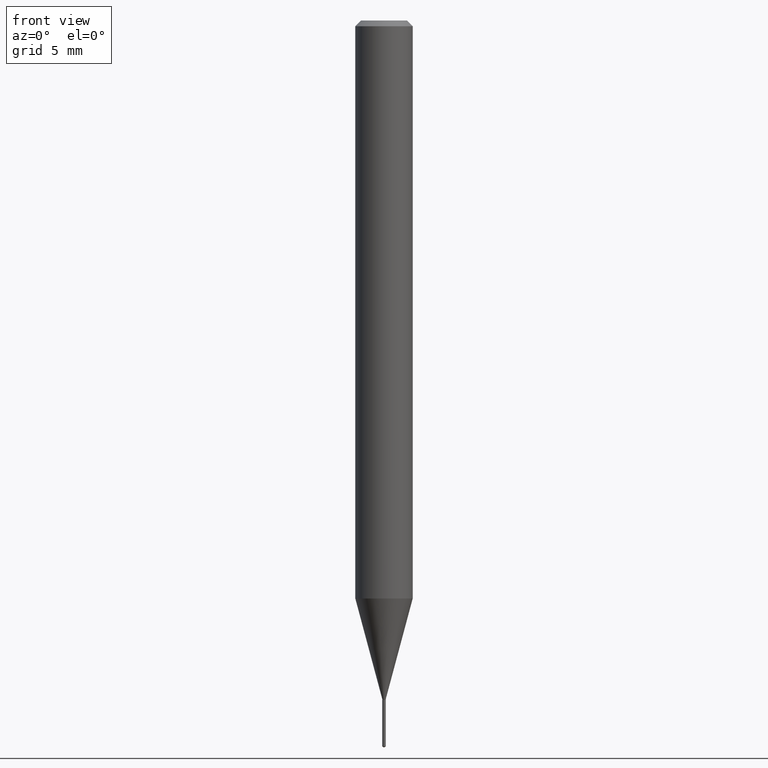
[diagram: clean part render]
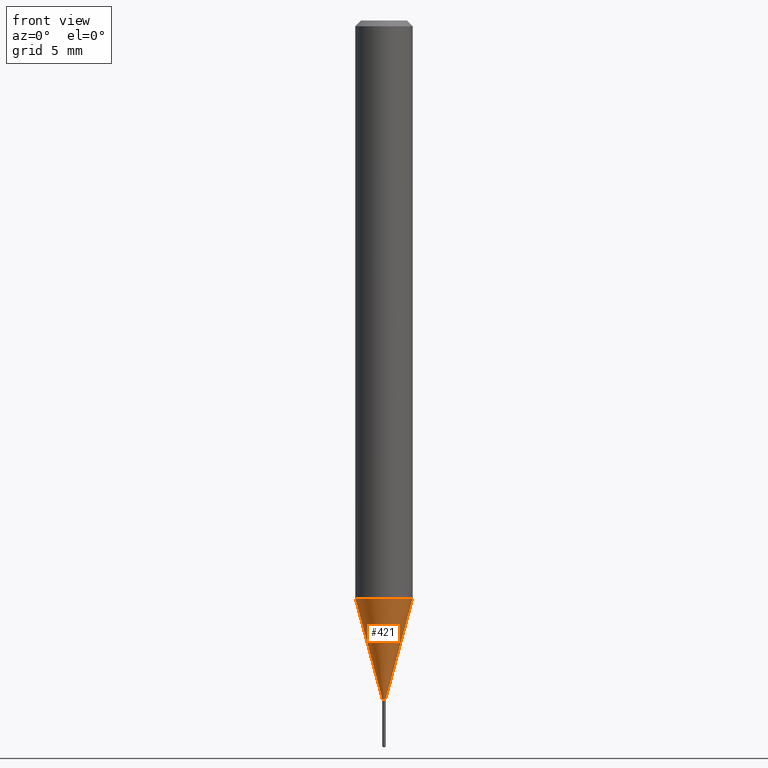
[diagram: same view with one face highlighted and labeled with its STEP entity id]
A machine part, front view. The second image highlights one B-rep face of the part: STEP entity #421.
In plain terms, the highlighted conical surface has half-angle 15 deg.
Its self-contained STEP definition (entity closure, byte-faithful):
#2 = CARTESIAN_POINT ( 'NONE',  ( 3.415341734718161419E-29, -4.876202837828336250E-15, -1.396599999999999842 ) ) ;
#33 = EDGE_CURVE ( 'NONE', #400, #395, #375, .T. ) ;
#36 = CARTESIAN_POINT ( 'NONE',  ( 0.05905000000000014404, -4.565360374807322723E-15, -1.189471180179926924 ) ) ;
#54 = AXIS2_PLACEMENT_3D ( 'NONE', #2, #414, #419 ) ;
#56 = VERTEX_POINT ( 'NONE', #369 ) ;
#57 = CARTESIAN_POINT ( 'NONE',  ( 2.908814666986231247E-29, -4.153016428689947803E-15, -1.189471180179926924 ) ) ;
#64 = DIRECTION ( 'NONE',  ( -2.445468806185136597E-29, 3.491481338843145583E-15, 1.000000000000000000 ) ) ;
#68 = CARTESIAN_POINT ( 'NONE',  ( -0.003549999999999997602, -4.852026015110506796E-15, -1.396599999999999842 ) ) ;
#72 = CARTESIAN_POINT ( 'NONE',  ( -0.05905000000000014404, -3.733440943223607521E-15, -1.189471180179926924 ) ) ;
#86 = EDGE_CURVE ( 'NONE', #395, #431, #424, .T. ) ;
#138 = EDGE_LOOP ( 'NONE', ( #285, #335, #249, #244 ) ) ;
#143 = DIRECTION ( 'NONE',  ( 0.2588190451025211836, 1.565188264969622559E-15, 0.9659258262890679791 ) ) ;
#147 = CARTESIAN_POINT ( 'NONE',  ( 3.415341734718161419E-29, -4.876202837828336250E-15, -1.396599999999999842 ) ) ;
#159 = VECTOR ( 'NONE', #470, 39.37007874015748854 ) ;
#214 = DIRECTION ( 'NONE',  ( -2.445468806185136597E-29, 3.491481338843145583E-15, 1.000000000000000000 ) ) ;
#236 = EDGE_CURVE ( 'NONE', #400, #56, #296, .T. ) ;
#242 = AXIS2_PLACEMENT_3D ( 'NONE', #57, #214, #434 ) ;
#244 = ORIENTED_EDGE ( 'NONE', *, *, #86, .F. ) ;
#247 = LINE ( 'NONE', #305, #447 ) ;
#249 = ORIENTED_EDGE ( 'NONE', *, *, #359, .T. ) ;
#276 = AXIS2_PLACEMENT_3D ( 'NONE', #147, #64, #383 ) ;
#285 = ORIENTED_EDGE ( 'NONE', *, *, #33, .F. ) ;
#291 = CONICAL_SURFACE ( 'NONE', #276, 0.003549999999999997602, 0.2617993877991499074 ) ;
#296 = CIRCLE ( 'NONE', #54, 0.003549999999999997602 ) ;
#305 = CARTESIAN_POINT ( 'NONE',  ( 0.003549999999999997602, -4.900992355334122390E-15, -1.396599999999999842 ) ) ;
#335 = ORIENTED_EDGE ( 'NONE', *, *, #236, .T. ) ;
#359 = EDGE_CURVE ( 'NONE', #56, #431, #247, .T. ) ;
#369 = CARTESIAN_POINT ( 'NONE',  ( 0.003549999999999997602, -4.900992355334122390E-15, -1.396599999999999842 ) ) ;
#375 = LINE ( 'NONE', #407, #159 ) ;
#383 = DIRECTION ( 'NONE',  ( 1.000000000000000000, -6.982962677686296687E-15, 0.000000000000000000 ) ) ;
#395 = VERTEX_POINT ( 'NONE', #72 ) ;
#400 = VERTEX_POINT ( 'NONE', #68 ) ;
#407 = CARTESIAN_POINT ( 'NONE',  ( -0.003549999999999997602, -4.850978570708852316E-15, -1.396599999999999842 ) ) ;
#414 = DIRECTION ( 'NONE',  ( -2.445468806185136597E-29, 3.491481338843145583E-15, 1.000000000000000000 ) ) ;
#419 = DIRECTION ( 'NONE',  ( 1.000000000000000000, -6.982962677686296687E-15, 0.000000000000000000 ) ) ;
#421 = ADVANCED_FACE ( 'NONE', ( #446 ), #291, .T. ) ;
#424 = CIRCLE ( 'NONE', #242, 0.05905000000000014404 ) ;
#431 = VERTEX_POINT ( 'NONE', #36 ) ;
#434 = DIRECTION ( 'NONE',  ( 1.000000000000000000, -6.982962677686272233E-15, 0.000000000000000000 ) ) ;
#446 = FACE_OUTER_BOUND ( 'NONE', #138, .T. ) ;
#447 = VECTOR ( 'NONE', #143, 39.37007874015748854 ) ;
#470 = DIRECTION ( 'NONE',  ( -0.2588190451025211836, 5.211531920934547886E-15, 0.9659258262890679791 ) ) ;